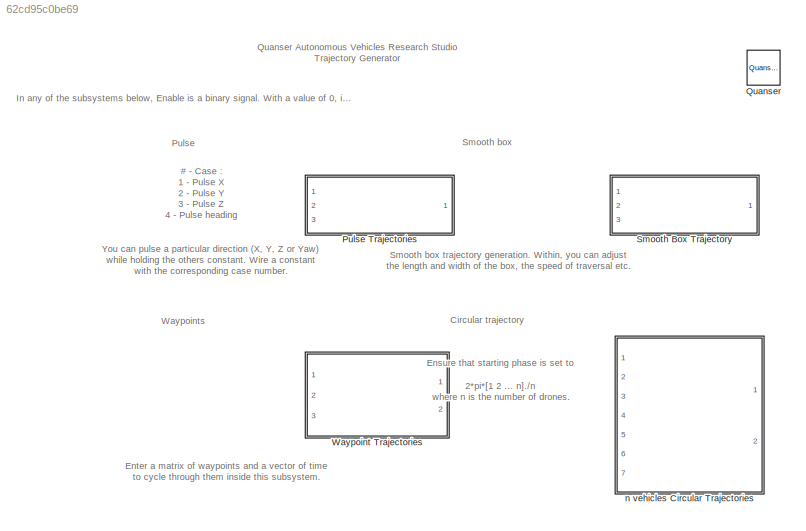
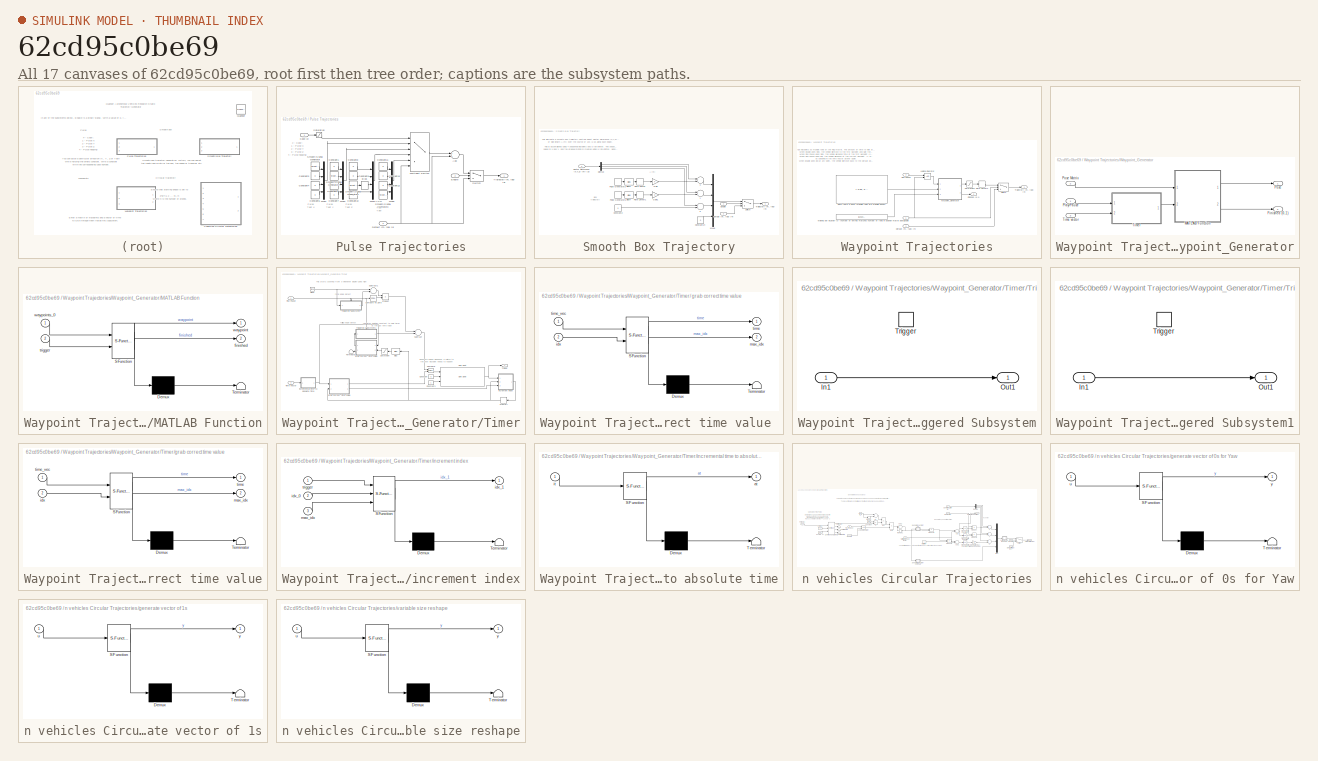
[diagram: thumbnail index - all 17 canvases of the model, root first then tree order]
MODEL slx_62cd95c0be69
KIND model
CONFIG AbsTol = auto
CONFIG EnableMultiTasking = on
CONFIG FixedStep = 0.001
CONFIG MaxStep = auto
CONFIG MinStep = auto
CONFIG RelTol = 1e-3
CONFIG SampleTimeConstraint = Unconstrained
CONFIG Solver = ode2
CONFIG SolverName = ode2
CONFIG StartTime = 0.0
CONFIG StopTime = inf
WORKSPACE source: MAT-file member
WORKSPACE MCOS: class17 (value not decoded)
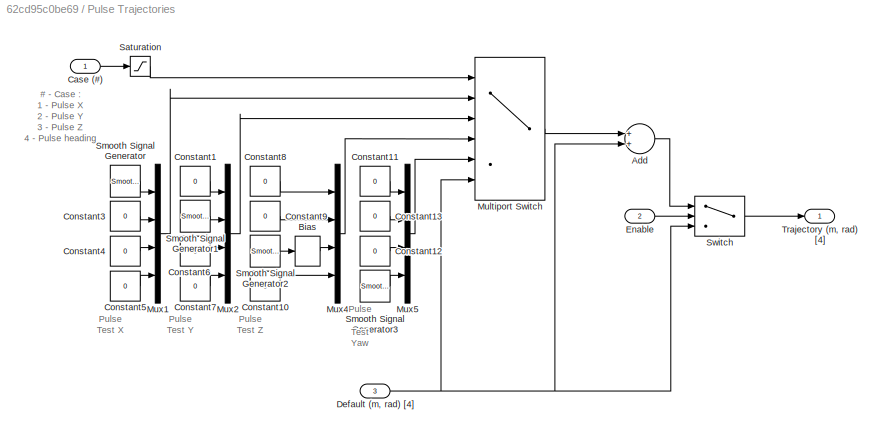
BLOCK [SubSystem] Pulse Trajectories
  Ports = [3, 1]
  RequestExecContextInheritance = off
  Variant = off
BLOCK [Sum] Pulse Trajectories/Add
  InputSameDT = off
  OutDataTypeStr = Inherit: Inherit via internal rule
  Ports = [2, 1]
  SaturateOnIntegerOverflow = off
BLOCK [Bias] Pulse Trajectories/Bias
  SaturateOnIntegerOverflow = off
BLOCK [Inport] Pulse Trajectories/Case (#)
  IconDisplay = Port number
BLOCK [Constant] Pulse Trajectories/Constant1
  Value = 0
BLOCK [Constant] Pulse Trajectories/Constant10
  Value = 0
BLOCK [Constant] Pulse Trajectories/Constant11
  Value = 0
BLOCK [Constant] Pulse Trajectories/Constant12
  Value = 0
BLOCK [Constant] Pulse Trajectories/Constant13
  Value = 0
BLOCK [Constant] Pulse Trajectories/Constant3
  Value = 0
BLOCK [Constant] Pulse Trajectories/Constant4
  Value = 0
BLOCK [Constant] Pulse Trajectories/Constant5
  Value = 0
BLOCK [Constant] Pulse Trajectories/Constant6
  Value = 0
BLOCK [Constant] Pulse Trajectories/Constant7
  Value = 0
BLOCK [Constant] Pulse Trajectories/Constant8
  Value = 0
BLOCK [Constant] Pulse Trajectories/Constant9
  Value = 0
BLOCK [Inport] Pulse Trajectories/Default (m, rad) [4]
  IconDisplay = Port number
  Port = 3
BLOCK [Inport] Pulse Trajectories/Enable
  IconDisplay = Port number
  Port = 2
BLOCK [MultiPortSwitch] Pulse Trajectories/Multiport Switch
  InputSameDT = off
  Inputs = 5
  Ports = [6, 1]
  SaturateOnIntegerOverflow = off
BLOCK [Mux] Pulse Trajectories/Mux1
  DisplayOption = bar
  Inputs = [1 1 1 1]
  Ports = [4, 1]
BLOCK [Mux] Pulse Trajectories/Mux2
  DisplayOption = bar
  Inputs = [1 1 1 1]
  Ports = [4, 1]
BLOCK [Mux] Pulse Trajectories/Mux4
  DisplayOption = bar
  Inputs = [1 1 1 1]
  Ports = [4, 1]
BLOCK [Mux] Pulse Trajectories/Mux5
  DisplayOption = bar
  Inputs = [1 1 1 1]
  Ports = [4, 1]
BLOCK [Saturate] Pulse Trajectories/Saturation
  InputPortMap = u0
  LowerLimit = 1
  Ports = [1, 1]
  UpperLimit = 5
BLOCK [Reference] Pulse Trajectories/Smooth Signal Generator  REF=quarc_library/Sources/Signals/Smooth Signal
Generator
  Ports = [0, 1]
  SourceBlock = quarc_library/Sources/Signals/Smooth Signal\nGenerator
  SourceProductName = QUARC Targets
  SourceType = Smooth Signal Generator
BLOCK [Reference] Pulse Trajectories/Smooth Signal Generator1  REF=quarc_library/Sources/Signals/Smooth Signal
Generator
  Ports = [0, 1]
  SourceBlock = quarc_library/Sources/Signals/Smooth Signal\nGenerator
  SourceProductName = QUARC Targets
  SourceType = Smooth Signal Generator
BLOCK [Reference] Pulse Trajectories/Smooth Signal Generator2  REF=quarc_library/Sources/Signals/Smooth Signal
Generator
  Ports = [0, 1]
  SourceBlock = quarc_library/Sources/Signals/Smooth Signal\nGenerator
  SourceProductName = QUARC Targets
  SourceType = Smooth Signal Generator
BLOCK [Reference] Pulse Trajectories/Smooth Signal Generator3  REF=quarc_library/Sources/Signals/Smooth Signal
Generator
  Ports = [0, 1]
  SourceBlock = quarc_library/Sources/Signals/Smooth Signal\nGenerator
  SourceProductName = QUARC Targets
  SourceType = Smooth Signal Generator
BLOCK [Switch] Pulse Trajectories/Switch
  Criteria = u2 > Threshold
  InputSameDT = off
  SaturateOnIntegerOverflow = off
BLOCK [Outport] Pulse Trajectories/Trajectory (m, rad) [4]
  IconDisplay = Port number
BLOCK [Reference] Quanser  REF=quarc_library/Logos/Quanser
  Ports = []
  SourceBlock = quarc_library/Logos/Quanser
  SourceProductName = QUARC Targets
  SourceType = Powered by Quanser
BLOCK [SubSystem] Smooth Box Trajectory
  Ports = [3, 1]
  RequestExecContextInheritance = off
  Variant = off
BLOCK [Bias] Smooth Box Trajectory/Bias4
  Bias = -0.5
  SaturateOnIntegerOverflow = off
BLOCK [Bias] Smooth Box Trajectory/Bias5
  Bias = -0.5
  SaturateOnIntegerOverflow = off
BLOCK [Inport] Smooth Box Trajectory/Center Reference (X,Y,Z) (m) [3]
  IconDisplay = Port number
  Port = 3
BLOCK [Constant] Smooth Box Trajectory/Constant14
  Value = 0
BLOCK [Constant] Smooth Box Trajectory/Constant2
  Value = 0
BLOCK [Inport] Smooth Box Trajectory/Default (m, rad) [4]
  IconDisplay = Port number
  Port = 2
BLOCK [Demux] Smooth Box Trajectory/Demux
  DisplayOption = bar
  Outputs = 3
  Ports = [1, 3]
BLOCK [Inport] Smooth Box Trajectory/Enable
  IconDisplay = Port number
BLOCK [Gain] Smooth Box Trajectory/Gain
  OutDataTypeStr = Inherit: Inherit via internal rule
  ParamDataTypeStr = Inherit: Inherit via internal rule
  SaturateOnIntegerOverflow = off
BLOCK [Gain] Smooth Box Trajectory/Gain1
  OutDataTypeStr = Inherit: Inherit via internal rule
  ParamDataTypeStr = Inherit: Inherit via internal rule
  SaturateOnIntegerOverflow = off
BLOCK [Mux] Smooth Box Trajectory/Mux6
  DisplayOption = bar
  Inputs = [1 1 1 1]
  Ports = [4, 1]
BLOCK [DiscretePulseGenerator] Smooth Box Trajectory/Pulse Generator2
  Period = 10
  Ports = [0, 1]
  PulseType = Time based
  PulseWidth = 50
BLOCK [DiscretePulseGenerator] Smooth Box Trajectory/Pulse Generator3
  Period = 10
  PhaseDelay = -2.5
  Ports = [0, 1]
  PulseType = Time based
  PulseWidth = 50
BLOCK [RateLimiter] Smooth Box Trajectory/Rate Limiter
  FallingSlewLimit = -1/2.5
  InitialCondition = 0.5
  RisingSlewLimit = 1/2.5
  SampleTimeMode = inherited
BLOCK [RateLimiter] Smooth Box Trajectory/Rate Limiter1
  FallingSlewLimit = -1/2.5
  InitialCondition = 0.5
  RisingSlewLimit = 1/2.5
  SampleTimeMode = inherited
BLOCK [Switch] Smooth Box Trajectory/Switch
  Criteria = u2 > Threshold
  InputSameDT = off
  SaturateOnIntegerOverflow = off
  Threshold = 0.5
BLOCK [Outport] Smooth Box Trajectory/Trajectory (m, rad) [4]
  IconDisplay = Port number
BLOCK [Sum] Smooth Box Trajectory/X
  InputSameDT = off
  OutDataTypeStr = Inherit: Inherit via internal rule
  Ports = [2, 1]
  SaturateOnIntegerOverflow = off
BLOCK [Sum] Smooth Box Trajectory/Y
  InputSameDT = off
  OutDataTypeStr = Inherit: Inherit via internal rule
  Ports = [2, 1]
  SaturateOnIntegerOverflow = off
BLOCK [Sum] Smooth Box Trajectory/Z
  InputSameDT = off
  OutDataTypeStr = Inherit: Inherit via internal rule
  Ports = [2, 1]
  SaturateOnIntegerOverflow = off
BLOCK [SubSystem] Waypoint Trajectories
  Ports = [3, 2]
  RequestExecContextInheritance = off
  Variant = off
BLOCK [Inport] Waypoint Trajectories/Default (m, rad) [4]
  IconDisplay = Port number
  Port = 3
BLOCK [Constant] Waypoint Trajectories/Each row is a pose (Multiple rows are multiple poses)
  Value = [ 0.00,  0.00, 1.00,  0.00;...\n    -0.25,  -0.50, 1.00,  0.00;...\n    -0.25, -0.50, 0.75,  0.00;...\n     0.75, -0.50, 0.75,  pi/2;...\n     0.75, -0.50, 1.25,  pi/2;...\n     0.75,  0.50, 1.25,  pi;...\n    -0.25,  0.50, 1.25,  3*pi/2;...\n    -0.25,  0.00, 1.25,  2*pi;...\n     0.00, 0.00, 1.00,  2*pi]
BLOCK [Inport] Waypoint Trajectories/Enable
  IconDisplay = Port number
BLOCK [Outport] Waypoint Trajectories/Finished (0,1)
  IconDisplay = Port number
  Port = 2
BLOCK [Logic] Waypoint Trajectories/Logical Operator
  AllPortsSameDT = off
  OutDataTypeStr = boolean
  Ports = [2, 1]
BLOCK [Inport] Waypoint Trajectories/Play//Pause
  IconDisplay = Port number
  Port = 2
BLOCK [RateLimiter] Waypoint Trajectories/Rate Limiter2
  FallingSlewLimit = [-1/3 -1/3 -1/6 -pi/6]
  RisingSlewLimit = [1/3 1/3 1/6 pi/6]
  SampleTimeMode = inherited
BLOCK [Saturate] Waypoint Trajectories/Saturation1
  InputPortMap = u0
  LowerLimit = [-1.5 -1.5 0 -3*pi]
  Ports = [1, 1]
  UpperLimit = [1.5 1.5 2 3*pi]
BLOCK [Switch] Waypoint Trajectories/Switch
  Criteria = u2 > Threshold
  InputSameDT = off
  SaturateOnIntegerOverflow = off
BLOCK [Outport] Waypoint Trajectories/Trajectory (m, rad) [4]
  IconDisplay = Port number
BLOCK [Constant] Waypoint Trajectories/Waiting per location (s) (number of entries matches number of rows in position matrix above)
  Value = [1 2 3 2 3 1 2 4 3 ]
BLOCK [SubSystem] Waypoint Trajectories/Waypoint_Generator
  Ports = [3, 2]
  RequestExecContextInheritance = off
  Variant = off
BLOCK [Outport] Waypoint Trajectories/Waypoint_Generator/Finished (0,1)
  IconDisplay = Port number
  Port = 2
BLOCK [SubSystem] Waypoint Trajectories/Waypoint_Generator/MATLAB Function
  ErrorFcn = Stateflow.Translate.translate
  PermitHierarchicalResolution = ExplicitOnly
  Ports = [2, 2]
  RequestExecContextInheritance = off
  SFBlockType = MATLAB Function
  TreatAsAtomicUnit = on
  Variant = off
BLOCK [Demux] Waypoint Trajectories/Waypoint_Generator/MATLAB Function/ Demux 
  Outputs = 1
  Ports = [1, 1]
BLOCK [S-Function] Waypoint Trajectories/Waypoint_Generator/MATLAB Function/ SFunction 
  EnableBusSupport = on
  FunctionName = sf_sfun
  PortCounts = [2 3]
  Ports = [2, 3]
  SFcnIsStateOwnerBlock = off
  SFunctionDeploymentMode = off
  Tag = Stateflow S-Function Position_Generator 3
BLOCK [Terminator] Waypoint Trajectories/Waypoint_Generator/MATLAB Function/ Terminator 
BLOCK [Outport] Waypoint Trajectories/Waypoint_Generator/MATLAB Function/finished
  IconDisplay = Port number
  Port = 2
BLOCK [Inport] Waypoint Trajectories/Waypoint_Generator/MATLAB Function/trigger
  IconDisplay = Port number
  Port = 2
BLOCK [Outport] Waypoint Trajectories/Waypoint_Generator/MATLAB Function/waypoint
  IconDisplay = Port number
BLOCK [Inport] Waypoint Trajectories/Waypoint_Generator/MATLAB Function/waypoints_0
  IconDisplay = Port number
BLOCK [Inport] Waypoint Trajectories/Waypoint_Generator/Play//Pause
  IconDisplay = Port number
BLOCK [Outport] Waypoint Trajectories/Waypoint_Generator/Pose
  IconDisplay = Port number
BLOCK [Inport] Waypoint Trajectories/Waypoint_Generator/Pose Matrix
  IconDisplay = Port number
  Port = 2
BLOCK [Inport] Waypoint Trajectories/Waypoint_Generator/Time vector
  IconDisplay = Port number
  Port = 3
BLOCK [SubSystem] Waypoint Trajectories/Waypoint_Generator/Timer
  Ports = [2, 1]
  RequestExecContextInheritance = off
  Variant = off
BLOCK [SubSystem] Waypoint Trajectories/Waypoint_Generator/Timer/ grab correct time value 
  ErrorFcn = Stateflow.Translate.translate
  PermitHierarchicalResolution = ExplicitOnly
  Ports = [2, 2]
  RequestExecContextInheritance = off
  SFBlockType = MATLAB Function
  TreatAsAtomicUnit = on
  Variant = off
BLOCK [Demux] Waypoint Trajectories/Waypoint_Generator/Timer/ grab correct time value / Demux 
  Outputs = 1
  Ports = [1, 1]
BLOCK [S-Function] Waypoint Trajectories/Waypoint_Generator/Timer/ grab correct time value / SFunction 
  EnableBusSupport = on
  FunctionName = sf_sfun
  PortCounts = [2 3]
  Ports = [2, 3]
  SFcnIsStateOwnerBlock = off
  SFunctionDeploymentMode = off
  Tag = Stateflow S-Function Position_Generator 4
BLOCK [Terminator] Waypoint Trajectories/Waypoint_Generator/Timer/ grab correct time value / Terminator 
BLOCK [Inport] Waypoint Trajectories/Waypoint_Generator/Timer/ grab correct time value /idx
  IconDisplay = Port number
  Port = 2
BLOCK [Outport] Waypoint Trajectories/Waypoint_Generator/Timer/ grab correct time value /max_idx
  IconDisplay = Port number
  Port = 2
BLOCK [Outport] Waypoint Trajectories/Waypoint_Generator/Timer/ grab correct time value /time
  IconDisplay = Port number
BLOCK [Inport] Waypoint Trajectories/Waypoint_Generator/Timer/ grab correct time value /time_vec
  IconDisplay = Port number
BLOCK [Bias] Waypoint Trajectories/Waypoint_Generator/Timer/Bias
  Bias = -1
  SaturateOnIntegerOverflow = off
BLOCK [Clock] Waypoint Trajectories/Waypoint_Generator/Timer/Clock
BLOCK [Reference] Waypoint Trajectories/Waypoint_Generator/Timer/Compare  REF=quarc_library/Logic Operations/Compare
  Ports = [2, 1]
  SourceBlock = quarc_library/Logic Operations/Compare
  SourceProductName = QUARC Targets
  SourceType = Compare
BLOCK [Reference] Waypoint Trajectories/Waypoint_Generator/Timer/Compare To Zero  REF=simulink/Logic and Bit
Operations/Compare
To Zero
  Ports = [1, 1]
  SourceBlock = simulink/Logic and Bit\nOperations/Compare\nTo Zero
  SourceProductBaseCode = SL
  SourceProductName = Simulink
  SourceType = Compare To Zero
BLOCK [Constant] Waypoint Trajectories/Waypoint_Generator/Timer/Constant
  Value = 0
BLOCK [Constant] Waypoint Trajectories/Waypoint_Generator/Timer/Constant1
BLOCK [Memory] Waypoint Trajectories/Waypoint_Generator/Timer/Memory
  X0 = 1
BLOCK [Reference] Waypoint Trajectories/Waypoint_Generator/Timer/One Shot  REF=quarc_library/Discontinuities/One Shot
  Ports = [3, 1]
  SourceBlock = quarc_library/Discontinuities/One Shot
  SourceProductName = QUARC Targets
  SourceType = One Shot
BLOCK [Inport] Waypoint Trajectories/Waypoint_Generator/Timer/Play//Pause
  IconDisplay = Port number
BLOCK [Product] Waypoint Trajectories/Waypoint_Generator/Timer/Product
  InputSameDT = off
  OutDataTypeStr = Inherit: Inherit via internal rule
  Ports = [2, 1]
  RndMeth = Floor
  SaturateOnIntegerOverflow = off
BLOCK [Saturate] Waypoint Trajectories/Waypoint_Generator/Timer/Saturation
  InputPortMap = u0
  LowerLimit = 1
  Ports = [1, 1]
  UpperLimit = Inf
BLOCK [Sum] Waypoint Trajectories/Waypoint_Generator/Timer/Subtract
  InputSameDT = off
  OutDataTypeStr = Inherit: Inherit via internal rule
  Ports = [2, 1]
  SaturateOnIntegerOverflow = off
BLOCK [Sum] Waypoint Trajectories/Waypoint_Generator/Timer/Subtract1
  InputSameDT = off
  Inputs = +-
  OutDataTypeStr = Inherit: Inherit via internal rule
  Ports = [2, 1]
  SaturateOnIntegerOverflow = off
BLOCK [Terminator] Waypoint Trajectories/Waypoint_Generator/Timer/Terminator
BLOCK [Inport] Waypoint Trajectories/Waypoint_Generator/Timer/Time vector
  IconDisplay = Port number
  Port = 2
BLOCK [Outport] Waypoint Trajectories/Waypoint_Generator/Timer/Trigger
  IconDisplay = Port number
BLOCK [SubSystem] Waypoint Trajectories/Waypoint_Generator/Timer/Triggered Subsystem
  Ports = [1, 1, 0, 1]
  RequestExecContextInheritance = off
  TreatAsAtomicUnit = on
  Variant = off
BLOCK [Inport] Waypoint Trajectories/Waypoint_Generator/Timer/Triggered Subsystem/In1
  IconDisplay = Port number
BLOCK [Outport] Waypoint Trajectories/Waypoint_Generator/Timer/Triggered Subsystem/Out1
  IconDisplay = Port number
BLOCK [TriggerPort] Waypoint Trajectories/Waypoint_Generator/Timer/Triggered Subsystem/Trigger
  Ports = []
  StatesWhenEnabling = held
  VariantControl = Variant
BLOCK [SubSystem] Waypoint Trajectories/Waypoint_Generator/Timer/Triggered Subsystem1
  Ports = [1, 1, 0, 1]
  RequestExecContextInheritance = off
  TreatAsAtomicUnit = on
  Variant = off
BLOCK [Inport] Waypoint Trajectories/Waypoint_Generator/Timer/Triggered Subsystem1/In1
  IconDisplay = Port number
BLOCK [Outport] Waypoint Trajectories/Waypoint_Generator/Timer/Triggered Subsystem1/Out1
  IconDisplay = Port number
BLOCK [TriggerPort] Waypoint Trajectories/Waypoint_Generator/Timer/Triggered Subsystem1/Trigger
  Ports = []
  StatesWhenEnabling = held
  TriggerType = falling
  VariantControl = Variant
BLOCK [SubSystem] Waypoint Trajectories/Waypoint_Generator/Timer/grab correct time value
  ErrorFcn = Stateflow.Translate.translate
  PermitHierarchicalResolution = ExplicitOnly
  Ports = [2, 2]
  RequestExecContextInheritance = off
  SFBlockType = MATLAB Function
  TreatAsAtomicUnit = on
  Variant = off
BLOCK [Demux] Waypoint Trajectories/Waypoint_Generator/Timer/grab correct time value/ Demux 
  Outputs = 1
  Ports = [1, 1]
BLOCK [S-Function] Waypoint Trajectories/Waypoint_Generator/Timer/grab correct time value/ SFunction 
  EnableBusSupport = on
  FunctionName = sf_sfun
  PortCounts = [2 3]
  Ports = [2, 3]
  SFcnIsStateOwnerBlock = off
  SFunctionDeploymentMode = off
  Tag = Stateflow S-Function Position_Generator 5
BLOCK [Terminator] Waypoint Trajectories/Waypoint_Generator/Timer/grab correct time value/ Terminator 
BLOCK [Inport] Waypoint Trajectories/Waypoint_Generator/Timer/grab correct time value/idx
  IconDisplay = Port number
  Port = 2
BLOCK [Outport] Waypoint Trajectories/Waypoint_Generator/Timer/grab correct time value/max_idx
  IconDisplay = Port number
  Port = 2
BLOCK [Outport] Waypoint Trajectories/Waypoint_Generator/Timer/grab correct time value/time
  IconDisplay = Port number
BLOCK [Inport] Waypoint Trajectories/Waypoint_Generator/Timer/grab correct time value/time_vec
  IconDisplay = Port number
BLOCK [SubSystem] Waypoint Trajectories/Waypoint_Generator/Timer/increment index
  ErrorFcn = Stateflow.Translate.translate
  PermitHierarchicalResolution = ExplicitOnly
  Ports = [3, 1]
  RequestExecContextInheritance = off
  SFBlockType = MATLAB Function
  TreatAsAtomicUnit = on
  Variant = off
BLOCK [Demux] Waypoint Trajectories/Waypoint_Generator/Timer/increment index/ Demux 
  Outputs = 1
  Ports = [1, 1]
BLOCK [S-Function] Waypoint Trajectories/Waypoint_Generator/Timer/increment index/ SFunction 
  EnableBusSupport = on
  FunctionName = sf_sfun
  PortCounts = [3 2]
  Ports = [3, 2]
  SFcnIsStateOwnerBlock = off
  SFunctionDeploymentMode = off
  Tag = Stateflow S-Function Position_Generator 6
BLOCK [Terminator] Waypoint Trajectories/Waypoint_Generator/Timer/increment index/ Terminator 
BLOCK [Inport] Waypoint Trajectories/Waypoint_Generator/Timer/increment index/idx_0
  IconDisplay = Port number
  Port = 2
BLOCK [Outport] Waypoint Trajectories/Waypoint_Generator/Timer/increment index/idx_1
  IconDisplay = Port number
BLOCK [Inport] Waypoint Trajectories/Waypoint_Generator/Timer/increment index/max_idx
  IconDisplay = Port number
  Port = 3
BLOCK [Inport] Waypoint Trajectories/Waypoint_Generator/Timer/increment index/trigger
  IconDisplay = Port number
BLOCK [SubSystem] Waypoint Trajectories/Waypoint_Generator/Timer/incremental time to absolute time
  ErrorFcn = Stateflow.Translate.translate
  PermitHierarchicalResolution = ExplicitOnly
  Ports = [1, 1]
  RequestExecContextInheritance = off
  SFBlockType = MATLAB Function
  TreatAsAtomicUnit = on
  Variant = off
BLOCK [Demux] Waypoint Trajectories/Waypoint_Generator/Timer/incremental time to absolute time/ Demux 
  Outputs = 1
  Ports = [1, 1]
BLOCK [S-Function] Waypoint Trajectories/Waypoint_Generator/Timer/incremental time to absolute time/ SFunction 
  EnableBusSupport = on
  FunctionName = sf_sfun
  PortCounts = [1 2]
  Ports = [1, 2]
  SFcnIsStateOwnerBlock = off
  SFunctionDeploymentMode = off
  Tag = Stateflow S-Function Position_Generator 7
BLOCK [Terminator] Waypoint Trajectories/Waypoint_Generator/Timer/incremental time to absolute time/ Terminator 
BLOCK [Outport] Waypoint Trajectories/Waypoint_Generator/Timer/incremental time to absolute time/at
  IconDisplay = Port number
BLOCK [Inport] Waypoint Trajectories/Waypoint_Generator/Timer/incremental time to absolute time/it
  IconDisplay = Port number
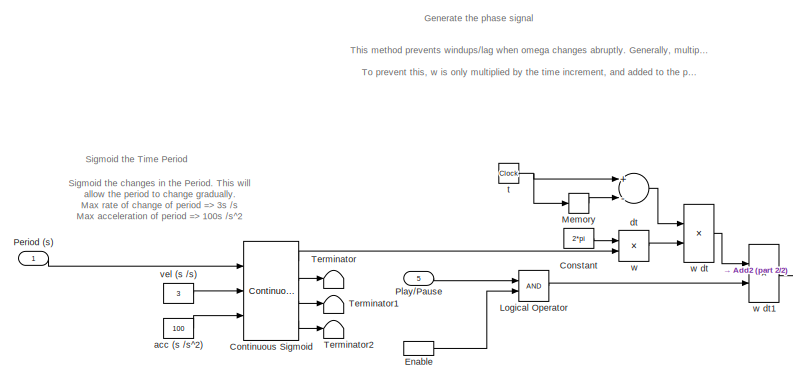
[diagram: n vehicles Circular Trajectories - part 1/2, middle left region]
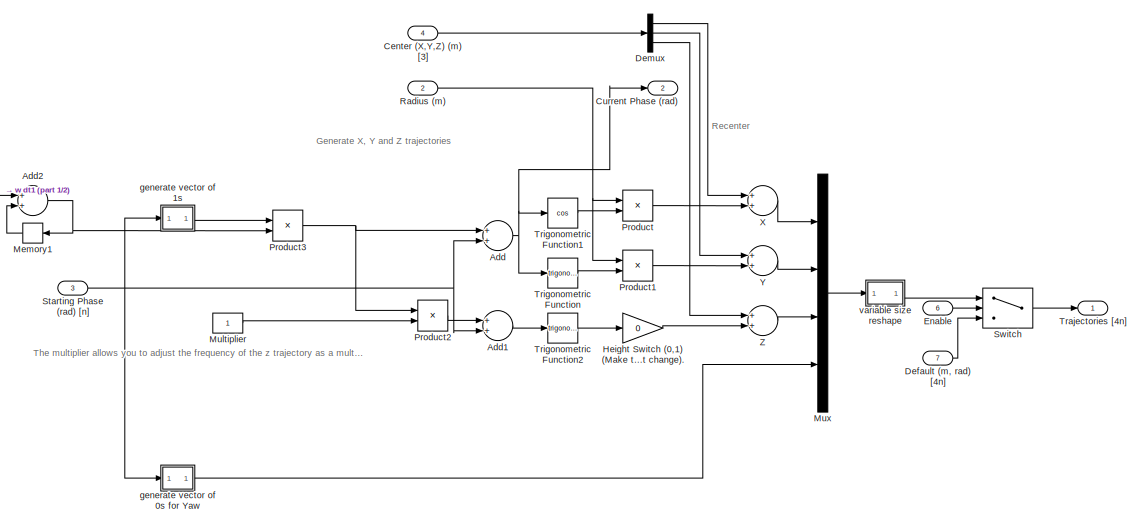
[diagram: n vehicles Circular Trajectories - part 2/2, right side, full height]
BLOCK [SubSystem] n vehicles Circular Trajectories
  Ports = [7, 2]
  RequestExecContextInheritance = off
  Variant = off
BLOCK [InportShadow] n vehicles Circular Trajectories/ Enable 
  IconDisplay = Port number
  Port = 6
BLOCK [Sum] n vehicles Circular Trajectories/Add
  InputSameDT = off
  OutDataTypeStr = Inherit: Inherit via internal rule
  Ports = [2, 1]
  SaturateOnIntegerOverflow = off
BLOCK [Sum] n vehicles Circular Trajectories/Add1
  InputSameDT = off
  OutDataTypeStr = Inherit: Inherit via internal rule
  Ports = [2, 1]
  SaturateOnIntegerOverflow = off
BLOCK [Sum] n vehicles Circular Trajectories/Add2
  InputSameDT = off
  OutDataTypeStr = Inherit: Inherit via internal rule
  Ports = [2, 1]
  SaturateOnIntegerOverflow = off
BLOCK [Inport] n vehicles Circular Trajectories/Center (X,Y,Z) (m) [3]
  IconDisplay = Port number
  Port = 4
BLOCK [Constant] n vehicles Circular Trajectories/Constant
  Value = 2*pi
BLOCK [Reference] n vehicles Circular Trajectories/Continuous Sigmoid  REF=quarc_library/Sources/Sigmoids/Continuous Sigmoid
  Ports = [3, 4]
  SourceBlock = quarc_library/Sources/Sigmoids/Continuous Sigmoid
  SourceProductName = QUARC Targets
  SourceType = Continuous Sigmoid
BLOCK [Outport] n vehicles Circular Trajectories/Current Phase (rad)
  IconDisplay = Port number
  Port = 2
BLOCK [Inport] n vehicles Circular Trajectories/Default (m, rad) [4n]
  IconDisplay = Port number
  Port = 7
BLOCK [Demux] n vehicles Circular Trajectories/Demux
  DisplayOption = bar
  Outputs = 3
  Ports = [1, 3]
BLOCK [Inport] n vehicles Circular Trajectories/Enable
  IconDisplay = Port number
  Port = 6
BLOCK [Gain] n vehicles Circular Trajectories/Height Switch (0,1) (Make this 0 to disable height change).
  Gain = 0
  OutDataTypeStr = Inherit: Inherit via internal rule
  ParamDataTypeStr = Inherit: Inherit via internal rule
  SaturateOnIntegerOverflow = off
BLOCK [Logic] n vehicles Circular Trajectories/Logical Operator
  AllPortsSameDT = off
  OutDataTypeStr = boolean
  Ports = [2, 1]
BLOCK [Memory] n vehicles Circular Trajectories/Memory
BLOCK [Memory] n vehicles Circular Trajectories/Memory1
BLOCK [Constant] n vehicles Circular Trajectories/Multiplier
BLOCK [Mux] n vehicles Circular Trajectories/Mux
  DisplayOption = bar
  Ports = [4, 1]
BLOCK [Inport] n vehicles Circular Trajectories/Period (s)
  IconDisplay = Port number
BLOCK [Inport] n vehicles Circular Trajectories/Play//Pause
  IconDisplay = Port number
  Port = 5
BLOCK [Product] n vehicles Circular Trajectories/Product
  InputSameDT = off
  OutDataTypeStr = Inherit: Inherit via internal rule
  Ports = [2, 1]
  RndMeth = Floor
  SaturateOnIntegerOverflow = off
BLOCK [Product] n vehicles Circular Trajectories/Product1
  InputSameDT = off
  OutDataTypeStr = Inherit: Inherit via internal rule
  Ports = [2, 1]
  RndMeth = Floor
  SaturateOnIntegerOverflow = off
BLOCK [Product] n vehicles Circular Trajectories/Product2
  InputSameDT = off
  OutDataTypeStr = Inherit: Inherit via internal rule
  Ports = [2, 1]
  RndMeth = Floor
  SaturateOnIntegerOverflow = off
BLOCK [Product] n vehicles Circular Trajectories/Product3
  InputSameDT = off
  OutDataTypeStr = Inherit: Inherit via internal rule
  Ports = [2, 1]
  RndMeth = Floor
  SaturateOnIntegerOverflow = off
BLOCK [Inport] n vehicles Circular Trajectories/Radius (m)
  IconDisplay = Port number
  Port = 2
BLOCK [Inport] n vehicles Circular Trajectories/Starting Phase (rad) [n]
  IconDisplay = Port number
  Port = 3
BLOCK [Switch] n vehicles Circular Trajectories/Switch
  Criteria = u2 > Threshold
  InputSameDT = off
  SaturateOnIntegerOverflow = off
BLOCK [Terminator] n vehicles Circular Trajectories/Terminator
BLOCK [Terminator] n vehicles Circular Trajectories/Terminator1
BLOCK [Terminator] n vehicles Circular Trajectories/Terminator2
BLOCK [Outport] n vehicles Circular Trajectories/Trajectories [4n]
  IconDisplay = Port number
BLOCK [Trigonometry] n vehicles Circular Trajectories/Trigonometric Function
  Ports = [1, 1]
BLOCK [Trigonometry] n vehicles Circular Trajectories/Trigonometric Function1
  Operator = cos
  Ports = [1, 1]
BLOCK [Trigonometry] n vehicles Circular Trajectories/Trigonometric Function2
  Ports = [1, 1]
BLOCK [Sum] n vehicles Circular Trajectories/X
  InputSameDT = off
  OutDataTypeStr = Inherit: Inherit via internal rule
  Ports = [2, 1]
  SaturateOnIntegerOverflow = off
BLOCK [Sum] n vehicles Circular Trajectories/Y
  InputSameDT = off
  OutDataTypeStr = Inherit: Inherit via internal rule
  Ports = [2, 1]
  SaturateOnIntegerOverflow = off
BLOCK [Sum] n vehicles Circular Trajectories/Z
  InputSameDT = off
  OutDataTypeStr = Inherit: Inherit via internal rule
  Ports = [2, 1]
  SaturateOnIntegerOverflow = off
BLOCK [Constant] n vehicles Circular Trajectories/acc (s //s^2)
  Value = 100
BLOCK [Sum] n vehicles Circular Trajectories/dt
  InputSameDT = off
  Inputs = +-
  OutDataTypeStr = Inherit: Inherit via internal rule
  Ports = [2, 1]
  SaturateOnIntegerOverflow = off
BLOCK [SubSystem] n vehicles Circular Trajectories/generate vector of 0s for Yaw
  ErrorFcn = Stateflow.Translate.translate
  PermitHierarchicalResolution = ExplicitOnly
  Ports = [1, 1]
  RequestExecContextInheritance = off
  SFBlockType = MATLAB Function
  TreatAsAtomicUnit = on
  Variant = off
BLOCK [Demux] n vehicles Circular Trajectories/generate vector of 0s for Yaw/ Demux 
  Outputs = 1
  Ports = [1, 1]
BLOCK [S-Function] n vehicles Circular Trajectories/generate vector of 0s for Yaw/ SFunction 
  EnableBusSupport = on
  FunctionName = sf_sfun
  PortCounts = [1 2]
  Ports = [1, 2]
  SFcnIsStateOwnerBlock = off
  SFunctionDeploymentMode = off
  Tag = Stateflow S-Function Position_Generator 1
BLOCK [Terminator] n vehicles Circular Trajectories/generate vector of 0s for Yaw/ Terminator 
BLOCK [Inport] n vehicles Circular Trajectories/generate vector of 0s for Yaw/u
  IconDisplay = Port number
BLOCK [Outport] n vehicles Circular Trajectories/generate vector of 0s for Yaw/y
  IconDisplay = Port number
BLOCK [SubSystem] n vehicles Circular Trajectories/generate vector of 1s
  ErrorFcn = Stateflow.Translate.translate
  PermitHierarchicalResolution = ExplicitOnly
  Ports = [1, 1]
  RequestExecContextInheritance = off
  SFBlockType = MATLAB Function
  TreatAsAtomicUnit = on
  Variant = off
BLOCK [Demux] n vehicles Circular Trajectories/generate vector of 1s/ Demux 
  Outputs = 1
  Ports = [1, 1]
BLOCK [S-Function] n vehicles Circular Trajectories/generate vector of 1s/ SFunction 
  EnableBusSupport = on
  FunctionName = sf_sfun
  PortCounts = [1 2]
  Ports = [1, 2]
  SFcnIsStateOwnerBlock = off
  SFunctionDeploymentMode = off
  Tag = Stateflow S-Function Position_Generator 2
BLOCK [Terminator] n vehicles Circular Trajectories/generate vector of 1s/ Terminator 
BLOCK [Inport] n vehicles Circular Trajectories/generate vector of 1s/u
  IconDisplay = Port number
BLOCK [Outport] n vehicles Circular Trajectories/generate vector of 1s/y
  IconDisplay = Port number
BLOCK [Clock] n vehicles Circular Trajectories/t
  Decimation = 1
BLOCK [SubSystem] n vehicles Circular Trajectories/variable size reshape
  ErrorFcn = Stateflow.Translate.translate
  PermitHierarchicalResolution = ExplicitOnly
  Ports = [1, 1]
  RequestExecContextInheritance = off
  SFBlockType = MATLAB Function
  TreatAsAtomicUnit = on
  Variant = off
BLOCK [Demux] n vehicles Circular Trajectories/variable size reshape/ Demux 
  Outputs = 1
  Ports = [1, 1]
BLOCK [S-Function] n vehicles Circular Trajectories/variable size reshape/ SFunction 
  EnableBusSupport = on
  FunctionName = sf_sfun
  PortCounts = [1 2]
  Ports = [1, 2]
  SFcnIsStateOwnerBlock = off
  SFunctionDeploymentMode = off
  Tag = Stateflow S-Function Position_Generator 8
BLOCK [Terminator] n vehicles Circular Trajectories/variable size reshape/ Terminator 
BLOCK [Inport] n vehicles Circular Trajectories/variable size reshape/u
  IconDisplay = Port number
BLOCK [Outport] n vehicles Circular Trajectories/variable size reshape/y
  IconDisplay = Port number
BLOCK [Constant] n vehicles Circular Trajectories/vel (s //s)
  Value = 3
BLOCK [Product] n vehicles Circular Trajectories/w
  InputSameDT = off
  Inputs = */
  OutDataTypeStr = Inherit: Inherit via internal rule
  Ports = [2, 1]
  RndMeth = Floor
  SaturateOnIntegerOverflow = off
BLOCK [Product] n vehicles Circular Trajectories/w dt
  InputSameDT = off
  OutDataTypeStr = Inherit: Inherit via internal rule
  Ports = [2, 1]
  RndMeth = Floor
  SaturateOnIntegerOverflow = off
BLOCK [Product] n vehicles Circular Trajectories/w dt1
  InputSameDT = off
  OutDataTypeStr = Inherit: Inherit via internal rule
  Ports = [2, 1]
  RndMeth = Floor
  SaturateOnIntegerOverflow = off
ANNOTATION (root): Quanser Autonomous Vehicles Research Studio Trajectory Generator
ANNOTATION (root): # - Case : 1 - Pulse X 2 - Pulse Y 3 - Pulse Z 4 - Pulse heading
ANNOTATION (root): Circular trajectory
ANNOTATION (root): Ensure that starting phase is set to 2*pi*[1 2 ... n]./n where n is the number of drones.
ANNOTATION (root): Enter a matrix of waypoints and a vector of time to cycle through them inside this subsystem.
ANNOTATION (root): In any of the subsystems below, Enable is a binary signal. With a value of 0, it will hold the drone in the default workspace center position of [0 0 1 0]^T. When Start? rises to 1, the actual trajectory will be sent to the vehicle.
ANNOTATION (root): Pulse
ANNOTATION (root): Smooth box
ANNOTATION (root): Smooth box trajectory generation. Within, you can adjust the length and width of the box, the speed of traversal etc.
ANNOTATION (root): Waypoints
ANNOTATION (root): You can pulse a particular direction (X, Y, Z or Yaw) while holding the others constant. Wire a constant with the corresponding case number.
ANNOTATION Pulse Trajectories: Pulse Test Yaw
ANNOTATION Pulse Trajectories: Pulse Test X
ANNOTATION Pulse Trajectories: Pulse Test Y
ANNOTATION Pulse Trajectories: Pulse Test Z
ANNOTATION Pulse Trajectories: # - Case : 1 - Pulse X 2 - Pulse Y 3 - Pulse Z 4 - Pulse heading
ANNOTATION Smooth Box Trajectory: Box trajectory
ANNOTATION Smooth Box Trajectory: A (m)
ANNOTATION Smooth Box Trajectory: This will create a smooth box trajectory centred about Center Reference (X,Y,Z) [3]. The Vehicle will move along the edges of a box of side length A (m) over the course of 10s (2.5s along each edge). This is accomplished using 4 sequential waypoints and a rate limiter. The sequential waypoints are created by a combination of pulses in X and Y, and the gradual motion is created using a rate limiter...<+64ch>
ANNOTATION Waypoint Trajectories: Add waypoints as multiple rows of the RED matrix. The amount of time to wait at each waypoint is is defined as the coloumns of the GREEN row matrix. When Enable goes high, the vehicle will move to the first waypoint and wait there. When Play/Pause goes high, the vehicle will spend time at the first waypoint (specified in the time vector) and then proceed to cycle through the remaining waypoints. W...<+296ch>
ANNOTATION Waypoint Trajectories/Waypoint_Generator/Timer: This starts counting from 0 whenever Begin? goes high
ANNOTATION Waypoint Trajectories/Waypoint_Generator/Timer: calculates addition constant to hold timer at the last time value
ANNOTATION Waypoint Trajectories/Waypoint_Generator/Timer: failling edge detect
ANNOTATION Waypoint Trajectories/Waypoint_Generator/Timer: generate pulses whenever a switch to the next waypoint needs to happen
ANNOTATION Waypoint Trajectories/Waypoint_Generator/Timer: rising edge detect
ANNOTATION n vehicles Circular Trajectories: Generate X, Y and Z trajectories
ANNOTATION n vehicles Circular Trajectories: Generate the phase signal
ANNOTATION n vehicles Circular Trajectories: Recenter
ANNOTATION n vehicles Circular Trajectories: Sigmoid the Time Period
ANNOTATION n vehicles Circular Trajectories: Sigmoid the changes in the Period. This will allow the period to change gradually. Max rate of change of period => 3s /s Max acceleration of period => 100s /s^2
ANNOTATION n vehicles Circular Trajectories: The multiplier allows you to adjust the frequency of the z trajectory as a multiple of 2*pi/T without altering the x and y trajectories. Set to a default of 1.
ANNOTATION n vehicles Circular Trajectories: This method prevents windups/lag when omega changes abruptly. Generally, multiplying w with t directly would work. However, when T increases, w decreases, causing "w t" to decrease as well. This will cause unrealistic/discontinuous changes in the trajectories generated downstream. To prevent this, w is only multiplied by the time increment, and added to the previous "w t" value.
LINE Pulse Trajectories/Add:1 -> Pulse Trajectories/Switch:1
LINE Pulse Trajectories/Bias:1 -> Pulse Trajectories/Mux4:3
LINE Pulse Trajectories/Case (#):1 -> Pulse Trajectories/Saturation:1
LINE Pulse Trajectories/Constant10:1 -> Pulse Trajectories/Mux4:4
LINE Pulse Trajectories/Constant11:1 -> Pulse Trajectories/Mux5:1
LINE Pulse Trajectories/Constant12:1 -> Pulse Trajectories/Mux5:3
LINE Pulse Trajectories/Constant13:1 -> Pulse Trajectories/Mux5:2
LINE Pulse Trajectories/Constant1:1 -> Pulse Trajectories/Mux2:1
LINE Pulse Trajectories/Constant3:1 -> Pulse Trajectories/Mux1:2
LINE Pulse Trajectories/Constant4:1 -> Pulse Trajectories/Mux1:3
LINE Pulse Trajectories/Constant5:1 -> Pulse Trajectories/Mux1:4
LINE Pulse Trajectories/Constant6:1 -> Pulse Trajectories/Mux2:3
LINE Pulse Trajectories/Constant7:1 -> Pulse Trajectories/Mux2:4
LINE Pulse Trajectories/Constant8:1 -> Pulse Trajectories/Mux4:1
LINE Pulse Trajectories/Constant9:1 -> Pulse Trajectories/Mux4:2
NET Pulse Trajectories/Default (m, rad) [4]:1 -> Pulse Trajectories/Add:2, Pulse Trajectories/Multiport Switch:6, Pulse Trajectories/Switch:3
LINE Pulse Trajectories/Enable:1 -> Pulse Trajectories/Switch:2
LINE Pulse Trajectories/Multiport Switch:1 -> Pulse Trajectories/Add:1
LINE Pulse Trajectories/Mux1:1 -> Pulse Trajectories/Multiport Switch:2
LINE Pulse Trajectories/Mux2:1 -> Pulse Trajectories/Multiport Switch:3
LINE Pulse Trajectories/Mux4:1 -> Pulse Trajectories/Multiport Switch:4
LINE Pulse Trajectories/Mux5:1 -> Pulse Trajectories/Multiport Switch:5
LINE Pulse Trajectories/Saturation:1 -> Pulse Trajectories/Multiport Switch:1
LINE Pulse Trajectories/Smooth Signal Generator1:1 -> Pulse Trajectories/Mux2:2
LINE Pulse Trajectories/Smooth Signal Generator2:1 -> Pulse Trajectories/Bias:1
LINE Pulse Trajectories/Smooth Signal Generator3:1 -> Pulse Trajectories/Mux5:4
LINE Pulse Trajectories/Smooth Signal Generator:1 -> Pulse Trajectories/Mux1:1
LINE Pulse Trajectories/Switch:1 -> Pulse Trajectories/Trajectory (m, rad) [4]:1
LINE Smooth Box Trajectory/Bias4:1 -> Smooth Box Trajectory/Rate Limiter1:1
LINE Smooth Box Trajectory/Bias5:1 -> Smooth Box Trajectory/Rate Limiter:1
LINE Smooth Box Trajectory/Center Reference (X,Y,Z) (m) [3]:1 -> Smooth Box Trajectory/Demux:1
LINE Smooth Box Trajectory/Constant14:1 -> Smooth Box Trajectory/Mux6:4
LINE Smooth Box Trajectory/Constant2:1 -> Smooth Box Trajectory/Z:2
LINE Smooth Box Trajectory/Default (m, rad) [4]:1 -> Smooth Box Trajectory/Switch:3
LINE Smooth Box Trajectory/Demux:1 -> Smooth Box Trajectory/X:1
LINE Smooth Box Trajectory/Demux:2 -> Smooth Box Trajectory/Y:1
LINE Smooth Box Trajectory/Demux:3 -> Smooth Box Trajectory/Z:1
LINE Smooth Box Trajectory/Enable:1 -> Smooth Box Trajectory/Switch:2
LINE Smooth Box Trajectory/Gain1:1 -> Smooth Box Trajectory/Y:2
LINE Smooth Box Trajectory/Gain:1 -> Smooth Box Trajectory/X:2
LINE Smooth Box Trajectory/Mux6:1 -> Smooth Box Trajectory/Switch:1
LINE Smooth Box Trajectory/Pulse Generator2:1 -> Smooth Box Trajectory/Bias4:1
LINE Smooth Box Trajectory/Pulse Generator3:1 -> Smooth Box Trajectory/Bias5:1
LINE Smooth Box Trajectory/Rate Limiter1:1 -> Smooth Box Trajectory/Gain1:1
LINE Smooth Box Trajectory/Rate Limiter:1 -> Smooth Box Trajectory/Gain:1
LINE Smooth Box Trajectory/Switch:1 -> Smooth Box Trajectory/Trajectory (m, rad) [4]:1
LINE Smooth Box Trajectory/X:1 -> Smooth Box Trajectory/Mux6:1
LINE Smooth Box Trajectory/Y:1 -> Smooth Box Trajectory/Mux6:2
LINE Smooth Box Trajectory/Z:1 -> Smooth Box Trajectory/Mux6:3
LINE Waypoint Trajectories/Default (m, rad) [4]:1 -> Waypoint Trajectories/Switch:3
LINE Waypoint Trajectories/Each row is a pose (Multiple rows are multiple poses):1 -> Waypoint Trajectories/Waypoint_Generator:2
NET Waypoint Trajectories/Enable:1 -> Waypoint Trajectories/Logical Operator:2, Waypoint Trajectories/Switch:2
LINE Waypoint Trajectories/Logical Operator:1 -> Waypoint Trajectories/Waypoint_Generator:1
LINE Waypoint Trajectories/Play//Pause:1 -> Waypoint Trajectories/Logical Operator:1
LINE Waypoint Trajectories/Rate Limiter2:1 -> Waypoint Trajectories/Switch:1
LINE Waypoint Trajectories/Saturation1:1 -> Waypoint Trajectories/Rate Limiter2:1
LINE Waypoint Trajectories/Switch:1 -> Waypoint Trajectories/Trajectory (m, rad) [4]:1
LINE Waypoint Trajectories/Waiting per location (s) (number of entries matches number of rows in position matrix above):1 -> Waypoint Trajectories/Waypoint_Generator:3
LINE Waypoint Trajectories/Waypoint_Generator/MATLAB Function:1 -> Waypoint Trajectories/Waypoint_Generator/Pose:1
LINE Waypoint Trajectories/Waypoint_Generator/MATLAB Function:2 -> Waypoint Trajectories/Waypoint_Generator/Finished (0,1):1
LINE Waypoint Trajectories/Waypoint_Generator/Play//Pause:1 -> Waypoint Trajectories/Waypoint_Generator/Timer:1
LINE Waypoint Trajectories/Waypoint_Generator/Pose Matrix:1 -> Waypoint Trajectories/Waypoint_Generator/MATLAB Function:1
LINE Waypoint Trajectories/Waypoint_Generator/Time vector:1 -> Waypoint Trajectories/Waypoint_Generator/Timer:2
LINE Waypoint Trajectories/Waypoint_Generator/Timer/ grab correct time value :1 -> Waypoint Trajectories/Waypoint_Generator/Timer/Triggered Subsystem1:1
LINE Waypoint Trajectories/Waypoint_Generator/Timer/ grab correct time value :2 -> Waypoint Trajectories/Waypoint_Generator/Timer/Terminator:1
LINE Waypoint Trajectories/Waypoint_Generator/Timer/Bias:1 -> Waypoint Trajectories/Waypoint_Generator/Timer/Saturation:1
NET Waypoint Trajectories/Waypoint_Generator/Timer/Clock:1 -> Waypoint Trajectories/Waypoint_Generator/Timer/Subtract1:1, Waypoint Trajectories/Waypoint_Generator/Timer/Triggered Subsystem:1
LINE Waypoint Trajectories/Waypoint_Generator/Timer/Compare To Zero:1 -> Waypoint Trajectories/Waypoint_Generator/Timer/Product:2
LINE Waypoint Trajectories/Waypoint_Generator/Timer/Compare:1 -> Waypoint Trajectories/Waypoint_Generator/Timer/One Shot:1
LINE Waypoint Trajectories/Waypoint_Generator/Timer/Constant1:1 -> Waypoint Trajectories/Waypoint_Generator/Timer/One Shot:3
LINE Waypoint Trajectories/Waypoint_Generator/Timer/Constant:1 -> Waypoint Trajectories/Waypoint_Generator/Timer/One Shot:2
NET Waypoint Trajectories/Waypoint_Generator/Timer/Memory:1 -> Waypoint Trajectories/Waypoint_Generator/Timer/Bias:1, Waypoint Trajectories/Waypoint_Generator/Timer/grab correct time value:2, Waypoint Trajectories/Waypoint_Generator/Timer/increment index:2
NET Waypoint Trajectories/Waypoint_Generator/Timer/One Shot:1 -> Waypoint Trajectories/Waypoint_Generator/Timer/Trigger:1, Waypoint Trajectories/Waypoint_Generator/Timer/increment index:1
NET Waypoint Trajectories/Waypoint_Generator/Timer/Play//Pause:1 -> Waypoint Trajectories/Waypoint_Generator/Timer/Compare To Zero:1, Waypoint Trajectories/Waypoint_Generator/Timer/Triggered Subsystem1:trigger, Waypoint Trajectories/Waypoint_Generator/Timer/Triggered Subsystem:trigger
LINE Waypoint Trajectories/Waypoint_Generator/Timer/Product:1 -> Waypoint Trajectories/Waypoint_Generator/Timer/Subtract:1
LINE Waypoint Trajectories/Waypoint_Generator/Timer/Saturation:1 -> Waypoint Trajectories/Waypoint_Generator/Timer/ grab correct time value :2
LINE Waypoint Trajectories/Waypoint_Generator/Timer/Subtract1:1 -> Waypoint Trajectories/Waypoint_Generator/Timer/Product:1
LINE Waypoint Trajectories/Waypoint_Generator/Timer/Subtract:1 -> Waypoint Trajectories/Waypoint_Generator/Timer/Compare:1
LINE Waypoint Trajectories/Waypoint_Generator/Timer/Time vector:1 -> Waypoint Trajectories/Waypoint_Generator/Timer/incremental time to absolute time:1
LINE Waypoint Trajectories/Waypoint_Generator/Timer/Triggered Subsystem/In1:1 -> Waypoint Trajectories/Waypoint_Generator/Timer/Triggered Subsystem/Out1:1
LINE Waypoint Trajectories/Waypoint_Generator/Timer/Triggered Subsystem1/In1:1 -> Waypoint Trajectories/Waypoint_Generator/Timer/Triggered Subsystem1/Out1:1
LINE Waypoint Trajectories/Waypoint_Generator/Timer/Triggered Subsystem1:1 -> Waypoint Trajectories/Waypoint_Generator/Timer/Subtract:2
LINE Waypoint Trajectories/Waypoint_Generator/Timer/Triggered Subsystem:1 -> Waypoint Trajectories/Waypoint_Generator/Timer/Subtract1:2
LINE Waypoint Trajectories/Waypoint_Generator/Timer/grab correct time value:1 -> Waypoint Trajectories/Waypoint_Generator/Timer/Compare:2
LINE Waypoint Trajectories/Waypoint_Generator/Timer/grab correct time value:2 -> Waypoint Trajectories/Waypoint_Generator/Timer/increment index:3
LINE Waypoint Trajectories/Waypoint_Generator/Timer/increment index:1 -> Waypoint Trajectories/Waypoint_Generator/Timer/Memory:1
NET Waypoint Trajectories/Waypoint_Generator/Timer/incremental time to absolute time:1 -> Waypoint Trajectories/Waypoint_Generator/Timer/ grab correct time value :1, Waypoint Trajectories/Waypoint_Generator/Timer/grab correct time value:1
LINE Waypoint Trajectories/Waypoint_Generator/Timer:1 -> Waypoint Trajectories/Waypoint_Generator/MATLAB Function:2
LINE Waypoint Trajectories/Waypoint_Generator:1 -> Waypoint Trajectories/Saturation1:1
LINE Waypoint Trajectories/Waypoint_Generator:2 -> Waypoint Trajectories/Finished (0,1):1
LINE n vehicles Circular Trajectories/ Enable :1 -> n vehicles Circular Trajectories/Logical Operator:2
LINE n vehicles Circular Trajectories/Add1:1 -> n vehicles Circular Trajectories/Trigonometric Function2:1
NET n vehicles Circular Trajectories/Add2:1 -> n vehicles Circular Trajectories/Memory1:1, n vehicles Circular Trajectories/Product3:2
NET n vehicles Circular Trajectories/Add:1 -> n vehicles Circular Trajectories/Current Phase (rad):1, n vehicles Circular Trajectories/Trigonometric Function1:1, n vehicles Circular Trajectories/Trigonometric Function:1
LINE n vehicles Circular Trajectories/Center (X,Y,Z) (m) [3]:1 -> n vehicles Circular Trajectories/Demux:1
LINE n vehicles Circular Trajectories/Constant:1 -> n vehicles Circular Trajectories/w:1
LINE n vehicles Circular Trajectories/Continuous Sigmoid:1 -> n vehicles Circular Trajectories/w:2
LINE n vehicles Circular Trajectories/Continuous Sigmoid:2 -> n vehicles Circular Trajectories/Terminator:1
LINE n vehicles Circular Trajectories/Continuous Sigmoid:3 -> n vehicles Circular Trajectories/Terminator1:1
LINE n vehicles Circular Trajectories/Continuous Sigmoid:4 -> n vehicles Circular Trajectories/Terminator2:1
LINE n vehicles Circular Trajectories/Default (m, rad) [4n]:1 -> n vehicles Circular Trajectories/Switch:3
LINE n vehicles Circular Trajectories/Demux:1 -> n vehicles Circular Trajectories/X:1
LINE n vehicles Circular Trajectories/Demux:2 -> n vehicles Circular Trajectories/Y:1
LINE n vehicles Circular Trajectories/Demux:3 -> n vehicles Circular Trajectories/Z:1
LINE n vehicles Circular Trajectories/Enable:1 -> n vehicles Circular Trajectories/Switch:2
LINE n vehicles Circular Trajectories/Height Switch (0,1) (Make this 0 to disable height change).:1 -> n vehicles Circular Trajectories/Z:2
LINE n vehicles Circular Trajectories/Logical Operator:1 -> n vehicles Circular Trajectories/w dt1:2
LINE n vehicles Circular Trajectories/Memory1:1 -> n vehicles Circular Trajectories/Add2:2
LINE n vehicles Circular Trajectories/Memory:1 -> n vehicles Circular Trajectories/dt:2
LINE n vehicles Circular Trajectories/Multiplier:1 -> n vehicles Circular Trajectories/Product2:2
LINE n vehicles Circular Trajectories/Mux:1 -> n vehicles Circular Trajectories/variable size reshape:1
LINE n vehicles Circular Trajectories/Period (s):1 -> n vehicles Circular Trajectories/Continuous Sigmoid:1
LINE n vehicles Circular Trajectories/Play//Pause:1 -> n vehicles Circular Trajectories/Logical Operator:1
LINE n vehicles Circular Trajectories/Product1:1 -> n vehicles Circular Trajectories/Y:2
LINE n vehicles Circular Trajectories/Product2:1 -> n vehicles Circular Trajectories/Add1:1
NET n vehicles Circular Trajectories/Product3:1 -> n vehicles Circular Trajectories/Add:1, n vehicles Circular Trajectories/Product2:1
LINE n vehicles Circular Trajectories/Product:1 -> n vehicles Circular Trajectories/X:2
NET n vehicles Circular Trajectories/Radius (m):1 -> n vehicles Circular Trajectories/Product1:1, n vehicles Circular Trajectories/Product:1
NET n vehicles Circular Trajectories/Starting Phase (rad) [n]:1 -> n vehicles Circular Trajectories/Add1:2, n vehicles Circular Trajectories/Add:2, n vehicles Circular Trajectories/generate vector of 0s for Yaw:1, n vehicles Circular Trajectories/generate vector of 1s:1
LINE n vehicles Circular Trajectories/Switch:1 -> n vehicles Circular Trajectories/Trajectories [4n]:1
LINE n vehicles Circular Trajectories/Trigonometric Function1:1 -> n vehicles Circular Trajectories/Product:2
LINE n vehicles Circular Trajectories/Trigonometric Function2:1 -> n vehicles Circular Trajectories/Height Switch (0,1) (Make this 0 to disable height change).:1
LINE n vehicles Circular Trajectories/Trigonometric Function:1 -> n vehicles Circular Trajectories/Product1:2
LINE n vehicles Circular Trajectories/X:1 -> n vehicles Circular Trajectories/Mux:1
LINE n vehicles Circular Trajectories/Y:1 -> n vehicles Circular Trajectories/Mux:2
LINE n vehicles Circular Trajectories/Z:1 -> n vehicles Circular Trajectories/Mux:3
LINE n vehicles Circular Trajectories/acc (s //s^2):1 -> n vehicles Circular Trajectories/Continuous Sigmoid:3
LINE n vehicles Circular Trajectories/dt:1 -> n vehicles Circular Trajectories/w dt:1
LINE n vehicles Circular Trajectories/generate vector of 0s for Yaw:1 -> n vehicles Circular Trajectories/Mux:4
LINE n vehicles Circular Trajectories/generate vector of 1s:1 -> n vehicles Circular Trajectories/Product3:1
NET n vehicles Circular Trajectories/t:1 -> n vehicles Circular Trajectories/Memory:1, n vehicles Circular Trajectories/dt:1
LINE n vehicles Circular Trajectories/variable size reshape:1 -> n vehicles Circular Trajectories/Switch:1
LINE n vehicles Circular Trajectories/vel (s //s):1 -> n vehicles Circular Trajectories/Continuous Sigmoid:2
LINE n vehicles Circular Trajectories/w dt1:1 -> n vehicles Circular Trajectories/Add2:1
LINE n vehicles Circular Trajectories/w dt:1 -> n vehicles Circular Trajectories/w dt1:1
LINE n vehicles Circular Trajectories/w:1 -> n vehicles Circular Trajectories/w dt:2
note: NET lines group one-source signal fan-out (src -> all destinations, sorted); 1:1 wires keep LINE
CHART n vehicles
Circular Trajectories/generate vector of 0s for Yaw states=1 transitions=1
  STATE_LABEL 'eML_blk_kernel()'
  STATE_LABEL 'SCRIPT:\nfunction y = fcn(u)\n\ny = 0.*u;\n'
CHART n vehicles
Circular Trajectories/generate vector of 1s states=1 transitions=1
  STATE_LABEL 'eML_blk_kernel()'
  STATE_LABEL 'SCRIPT:\nfunction y = fcn(u)\n\ny = 0.*u + 1;\n'
CHART Waypoint Trajectories/Waypoint_Generator/MATLAB Function states=1 transitions=1
  STATE_LABEL 'eML_blk_kernel()'
  STATE_LABEL 'SCRIPT:\nfunction [waypoint, finished]  = fcn(waypoints_0, trigger)\npersistent idx;\n[m, ~] = size(waypoints_0);\nfinished = 0;\nif isempty(idx)\n    idx = 1;\nend\n\nif trigger && idx < m\n    idx = idx + 1;\nend\n\nif idx == m\n    finished = 1;\nend\n\nwaypoint = waypoints_0(idx, :);'
CHART Waypoint Trajectories/Waypoint_Generator/Timer/ grab correct 
 time value  states=1 transitions=1
  STATE_LABEL 'eML_blk_kernel()'
  STATE_LABEL 'SCRIPT:\nfunction [time, max_idx] = fcn(time_vec, idx)\n\ntime = time_vec(idx);\nmax_idx = length(time_vec);'
CHART Waypoint Trajectories/Waypoint_Generator/Timer/grab correct
time value states=1 transitions=1
  STATE_LABEL 'eML_blk_kernel()'
  STATE_LABEL 'SCRIPT:\nfunction [time, max_idx] = fcn(time_vec, idx)\n\ntime = time_vec(idx);\nmax_idx = length(time_vec);'
CHART Waypoint Trajectories/Waypoint_Generator/Timer/increment index states=1 transitions=1
  STATE_LABEL 'eML_blk_kernel()'
  STATE_LABEL 'SCRIPT:\nfunction idx_1 = fcn(trigger, idx_0, max_idx)\n\nif trigger && (idx_0 < max_idx)\n    idx_1 = idx_0 + 1;\nelse\n    idx_1 = idx_0;\nend\n'
CHART Waypoint Trajectories/Waypoint_Generator/Timer/incremental time
to absolute time states=1 transitions=1
  STATE_LABEL 'eML_blk_kernel()'
  STATE_LABEL 'SCRIPT:\nfunction at = fcn(it)\nat = it;\nn = length(it);\nfor i = 2:n\n    at(i) = at(i-1) + it(i); \nend\n'
CHART n vehicles
Circular Trajectories/variable size
reshape states=1 transitions=1
  STATE_LABEL 'eML_blk_kernel()'
  STATE_LABEL 'SCRIPT:\nfunction y = fcn(u)\ny = u;\nnum = length(u)/4;\nfor i = 1:4\n    for j = 1:num\n        y(4*(j-1) + i) = u(j + num*(i-1));\n    end\nend\n'
